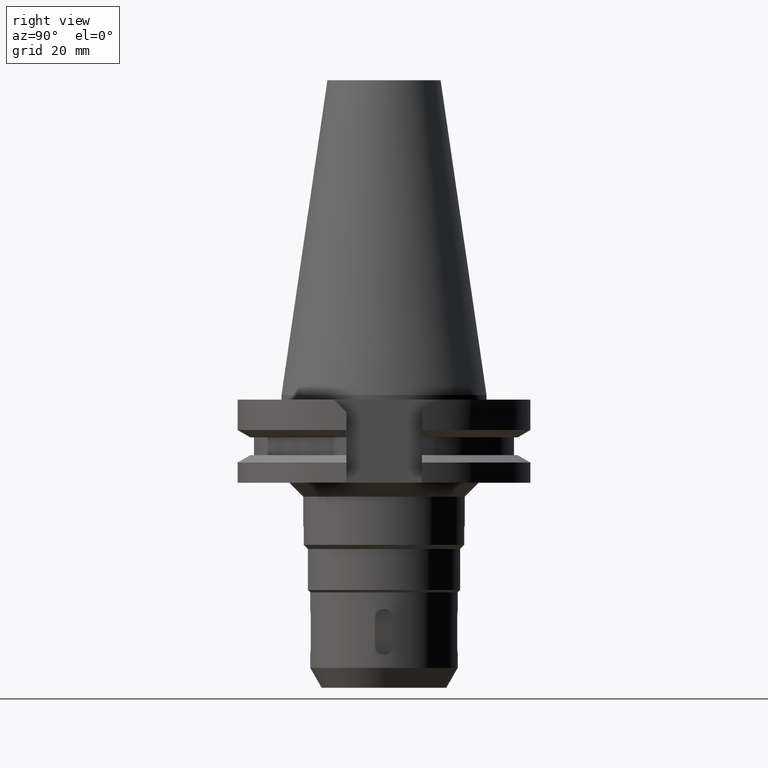
[diagram: clean part render]
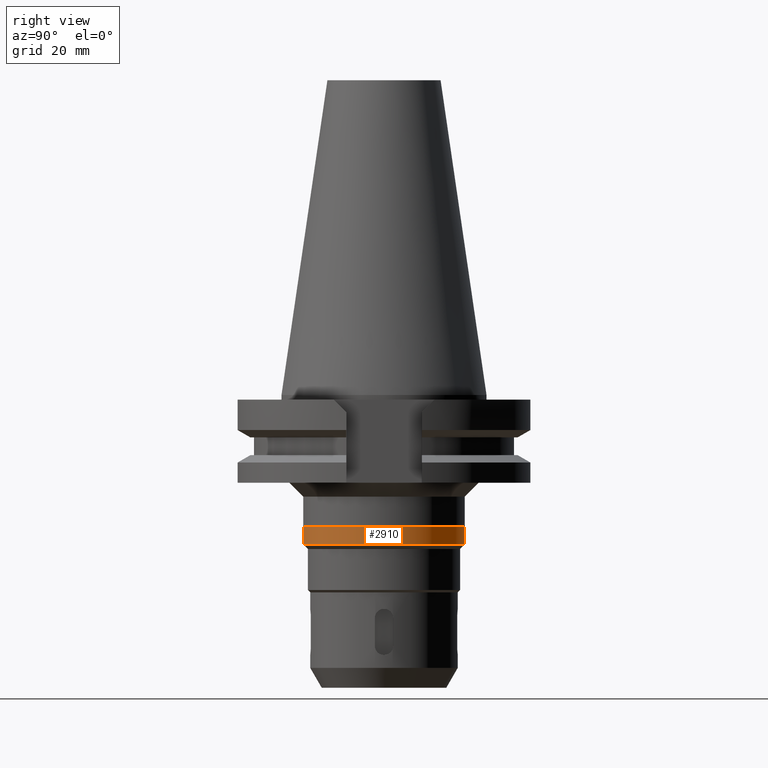
[diagram: same view with one face highlighted and labeled with its STEP entity id]
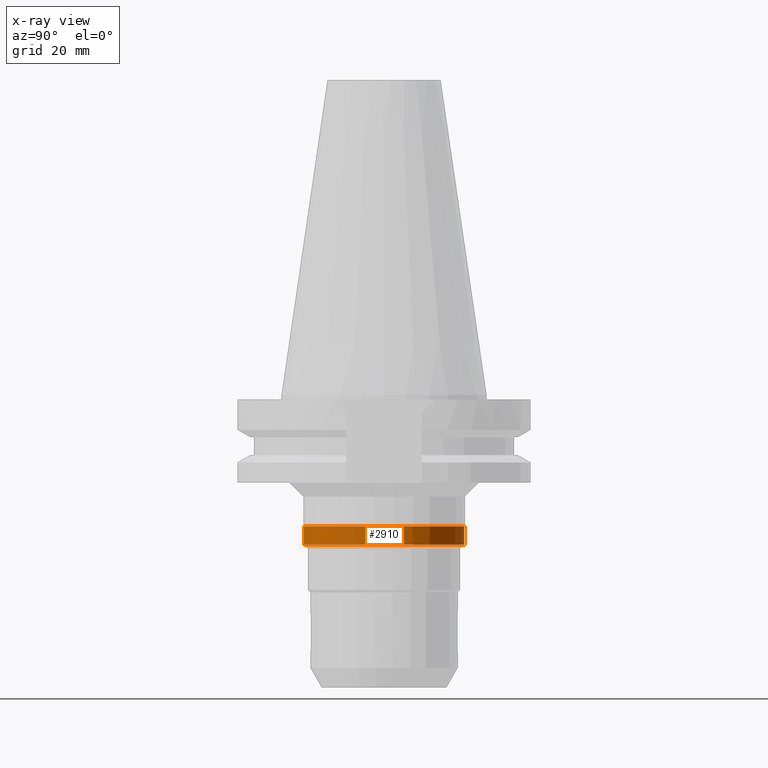
[diagram: x-ray of the same camera — body ghosted, the highlighted face saturated]
A machine part, right view. The second image highlights one B-rep face of the part: STEP entity #2910.
The next image is the same camera in x-ray: the body ghosted, the highlighted face saturated — about 0% of this face is hidden behind the body in this view.
In plain terms, the highlighted cylindrical surface (partial cylindrical patch) has radius 17.4 mm, axis along (0, 0, -1).
Its self-contained STEP definition (entity closure, byte-faithful):
#916=CARTESIAN_POINT('',(0.E0,2.141141847459E-14,-2.85E1));
#917=DIRECTION('',(0.E0,0.E0,-1.E0));
#918=DIRECTION('',(0.E0,1.E0,0.E0));
#919=AXIS2_PLACEMENT_3D('',#916,#917,#918);
#924=DIRECTION('',(0.E0,0.E0,-1.E0));
#925=VECTOR('',#924,4.E0);
#926=CARTESIAN_POINT('',(0.E0,-1.74E1,-2.85E1));
#927=LINE('',#926,#925);
#931=DIRECTION('',(0.E0,0.E0,-1.E0));
#932=VECTOR('',#931,4.E0);
#933=CARTESIAN_POINT('',(0.E0,1.74E1,-2.85E1));
#934=LINE('',#933,#932);
#953=CARTESIAN_POINT('',(0.E0,0.E0,-3.25E1));
#954=DIRECTION('',(0.E0,0.E0,1.E0));
#955=DIRECTION('',(0.E0,-1.E0,0.E0));
#956=AXIS2_PLACEMENT_3D('',#953,#954,#955);
#2033=CARTESIAN_POINT('',(0.E0,1.74E1,-3.25E1));
#2034=VERTEX_POINT('',#2033);
#2035=CARTESIAN_POINT('',(0.E0,-1.74E1,-3.25E1));
#2036=VERTEX_POINT('',#2035);
#2037=CARTESIAN_POINT('',(0.E0,1.74E1,-2.85E1));
#2038=VERTEX_POINT('',#2037);
#2039=CARTESIAN_POINT('',(0.E0,-1.74E1,-2.85E1));
#2040=VERTEX_POINT('',#2039);
#2898=CARTESIAN_POINT('',(0.E0,2.141141847459E-14,7.48375E1));
#2899=DIRECTION('',(0.E0,0.E0,-1.E0));
#2900=DIRECTION('',(0.E0,-1.E0,0.E0));
#2901=AXIS2_PLACEMENT_3D('',#2898,#2899,#2900);
#2902=CYLINDRICAL_SURFACE('',#2901,1.74E1);
#2903=ORIENTED_EDGE('',*,*,#2888,.T.);
#2905=ORIENTED_EDGE('',*,*,#2904,.F.);
#2906=ORIENTED_EDGE('',*,*,#2891,.F.);
#2907=ORIENTED_EDGE('',*,*,#2878,.F.);
#2908=EDGE_LOOP('',(#2903,#2905,#2906,#2907));
#2909=FACE_OUTER_BOUND('',#2908,.F.);
#920=CIRCLE('',#919,1.74E1);
#957=CIRCLE('',#956,1.74E1);
#2878=EDGE_CURVE('',#2038,#2040,#920,.T.);
#2888=EDGE_CURVE('',#2038,#2034,#934,.T.);
#2891=EDGE_CURVE('',#2040,#2036,#927,.T.);
#2904=EDGE_CURVE('',#2036,#2034,#957,.T.);
#2910=ADVANCED_FACE('',(#2909),#2902,.T.);